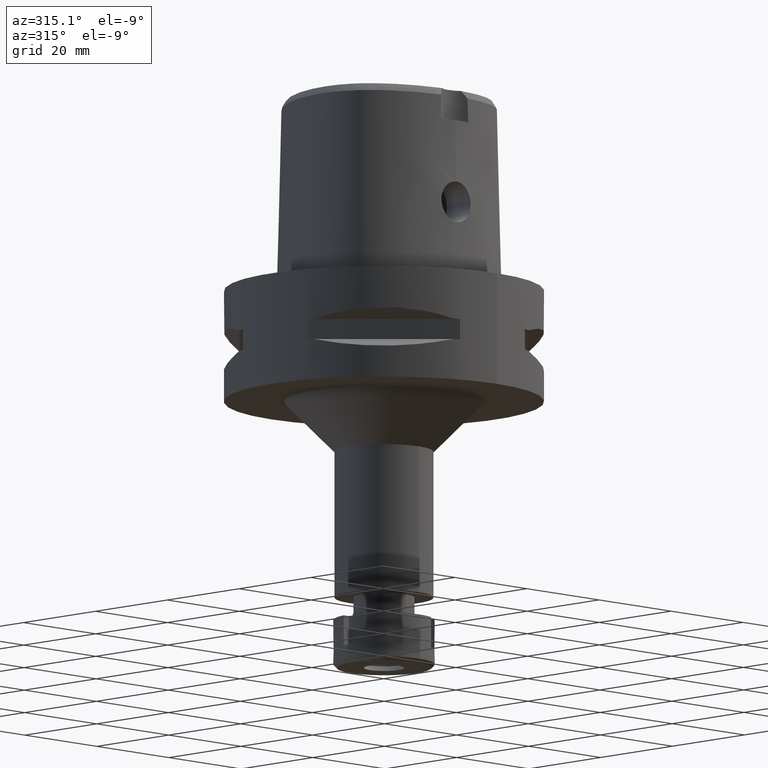
[diagram: clean part render]
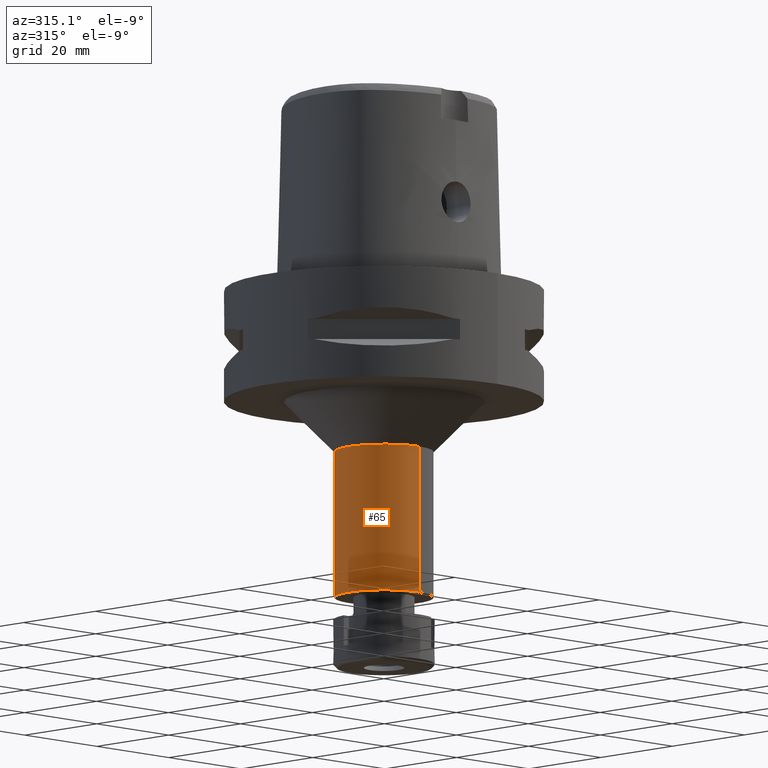
[diagram: same view with one face highlighted and labeled with its STEP entity id]
A machine part, auxiliary view. The second image highlights one B-rep face of the part: STEP entity #65.
In plain terms, the highlighted cylindrical surface (partial cylindrical patch) has radius 9.75 mm, axis along (0, 0, -1).
Its self-contained STEP definition (entity closure, byte-faithful):
#65 = ADVANCED_FACE ( 'NONE', ( #4147 ), #2010, .T. ) ;
#156 = VERTEX_POINT ( 'NONE', #2059 ) ;
#222 = CARTESIAN_POINT ( 'NONE',  ( 0.0000000000000000000, -9.750000000000000000, -32.00000000000000000 ) ) ;
#333 = EDGE_CURVE ( 'NONE', #621, #1318, #1048, .T. ) ;
#431 = DIRECTION ( 'NONE',  ( 0.0000000000000000000, 0.0000000000000000000, -1.000000000000000000 ) ) ;
#621 = VERTEX_POINT ( 'NONE', #2981 ) ;
#755 = DIRECTION ( 'NONE',  ( 0.0000000000000000000, -1.000000000000000000, 0.0000000000000000000 ) ) ;
#760 = VECTOR ( 'NONE', #1861, 1000.000000000000000 ) ;
#1048 = LINE ( 'NONE', #222, #760 ) ;
#1052 = DIRECTION ( 'NONE',  ( 0.0000000000000000000, 0.0000000000000000000, 1.000000000000000000 ) ) ;
#1220 = EDGE_CURVE ( 'NONE', #3867, #156, #1928, .T. ) ;
#1288 = AXIS2_PLACEMENT_3D ( 'NONE', #1950, #1052, #1924 ) ;
#1318 = VERTEX_POINT ( 'NONE', #2938 ) ;
#1369 = AXIS2_PLACEMENT_3D ( 'NONE', #2884, #1569, #3680 ) ;
#1569 = DIRECTION ( 'NONE',  ( 0.0000000000000000000, 0.0000000000000000000, -1.000000000000000000 ) ) ;
#1782 = CIRCLE ( 'NONE', #1874, 9.750000000000000000 ) ;
#1861 = DIRECTION ( 'NONE',  ( 0.0000000000000000000, 0.0000000000000000000, -1.000000000000000000 ) ) ;
#1874 = AXIS2_PLACEMENT_3D ( 'NONE', #4541, #431, #755 ) ;
#1924 = DIRECTION ( 'NONE',  ( 0.0000000000000000000, 1.000000000000000000, 0.0000000000000000000 ) ) ;
#1928 = LINE ( 'NONE', #3601, #2366 ) ;
#1950 = CARTESIAN_POINT ( 'NONE',  ( 0.0000000000000000000, 1.267509437118000086E-14, -61.00000000000000000 ) ) ;
#2010 = CYLINDRICAL_SURFACE ( 'NONE', #1369, 9.750000000000000000 ) ;
#2059 = CARTESIAN_POINT ( 'NONE',  ( 0.0000000000000000000, 9.750000000000000000, -61.00000000000000000 ) ) ;
#2366 = VECTOR ( 'NONE', #5315, 1000.000000000000000 ) ;
#2389 = ORIENTED_EDGE ( 'NONE', *, *, #2803, .T. ) ;
#2477 = EDGE_CURVE ( 'NONE', #156, #1318, #2878, .T. ) ;
#2803 = EDGE_CURVE ( 'NONE', #621, #3867, #1782, .T. ) ;
#2878 = CIRCLE ( 'NONE', #1288, 9.750000000000000000 ) ;
#2884 = CARTESIAN_POINT ( 'NONE',  ( 0.0000000000000000000, 1.267509437118000086E-14, 3.500000000000000000 ) ) ;
#2938 = CARTESIAN_POINT ( 'NONE',  ( 0.0000000000000000000, -9.750000000000000000, -61.00000000000000000 ) ) ;
#2981 = CARTESIAN_POINT ( 'NONE',  ( 0.0000000000000000000, -9.750000000000000000, -32.00000000000000000 ) ) ;
#3148 = ORIENTED_EDGE ( 'NONE', *, *, #2477, .T. ) ;
#3355 = CARTESIAN_POINT ( 'NONE',  ( 0.0000000000000000000, 9.750000000000000000, -32.00000000000000000 ) ) ;
#3601 = CARTESIAN_POINT ( 'NONE',  ( 0.0000000000000000000, 9.750000000000000000, -32.00000000000000000 ) ) ;
#3680 = DIRECTION ( 'NONE',  ( 0.0000000000000000000, -1.000000000000000000, 0.0000000000000000000 ) ) ;
#3707 = EDGE_LOOP ( 'NONE', ( #3148, #4440, #2389, #5085 ) ) ;
#3867 = VERTEX_POINT ( 'NONE', #3355 ) ;
#4147 = FACE_OUTER_BOUND ( 'NONE', #3707, .T. ) ;
#4440 = ORIENTED_EDGE ( 'NONE', *, *, #333, .F. ) ;
#4541 = CARTESIAN_POINT ( 'NONE',  ( 0.0000000000000000000, 0.0000000000000000000, -32.00000000000000000 ) ) ;
#5085 = ORIENTED_EDGE ( 'NONE', *, *, #1220, .T. ) ;
#5315 = DIRECTION ( 'NONE',  ( 0.0000000000000000000, 0.0000000000000000000, -1.000000000000000000 ) ) ;